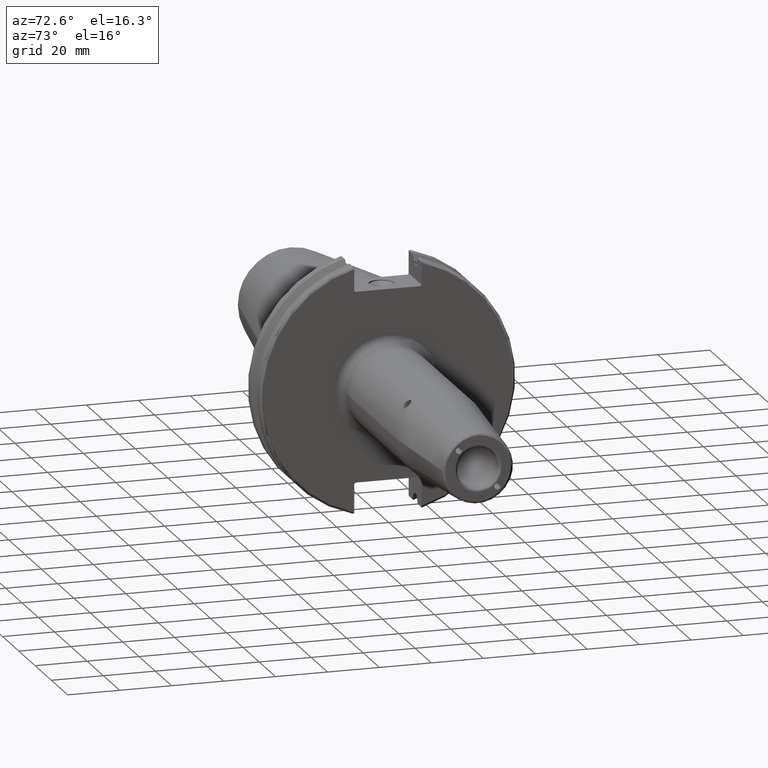
[diagram: clean part render]
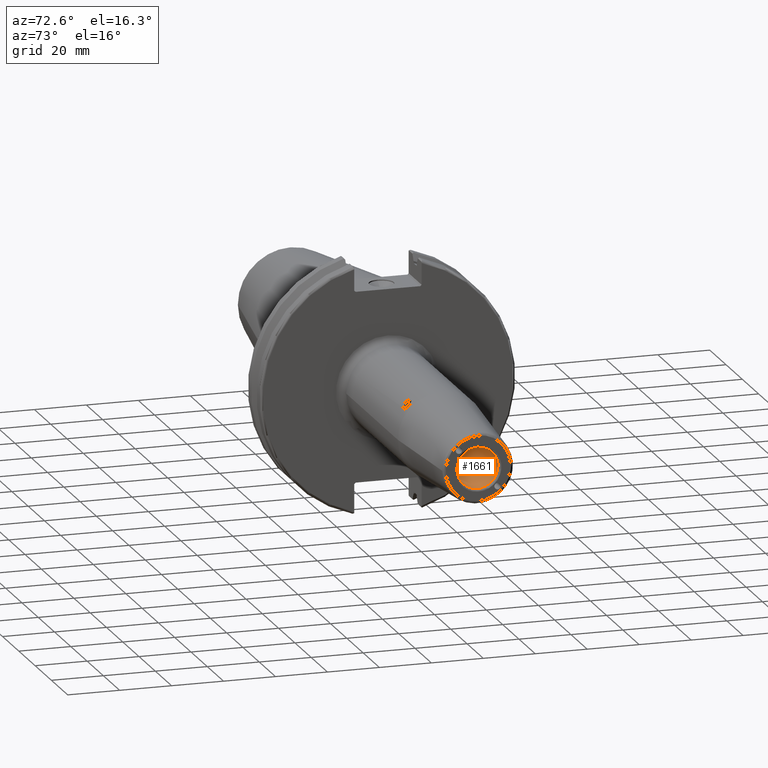
[diagram: same view with one face highlighted and labeled with its STEP entity id]
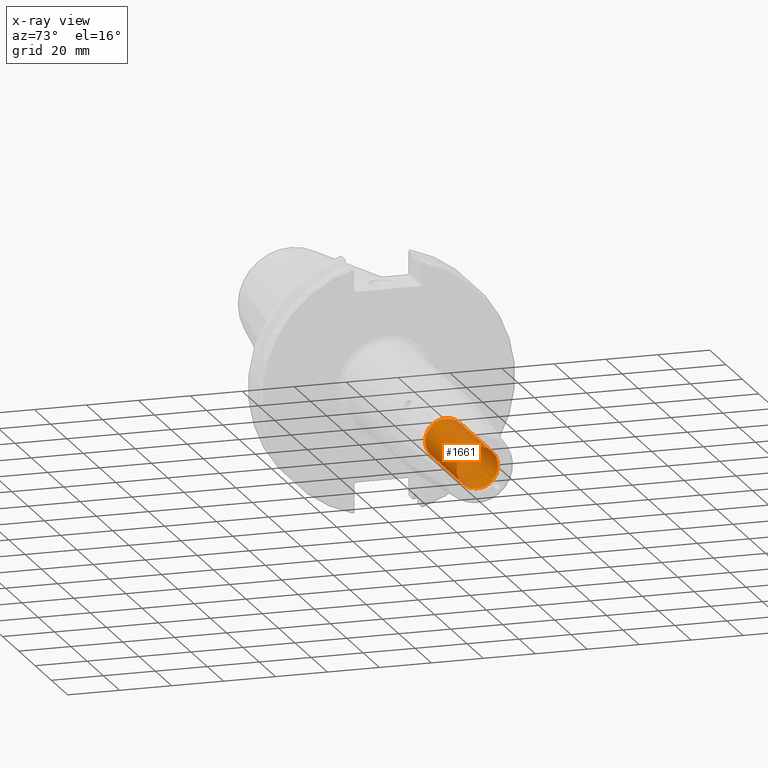
[diagram: x-ray of the same camera — body ghosted, the highlighted face saturated]
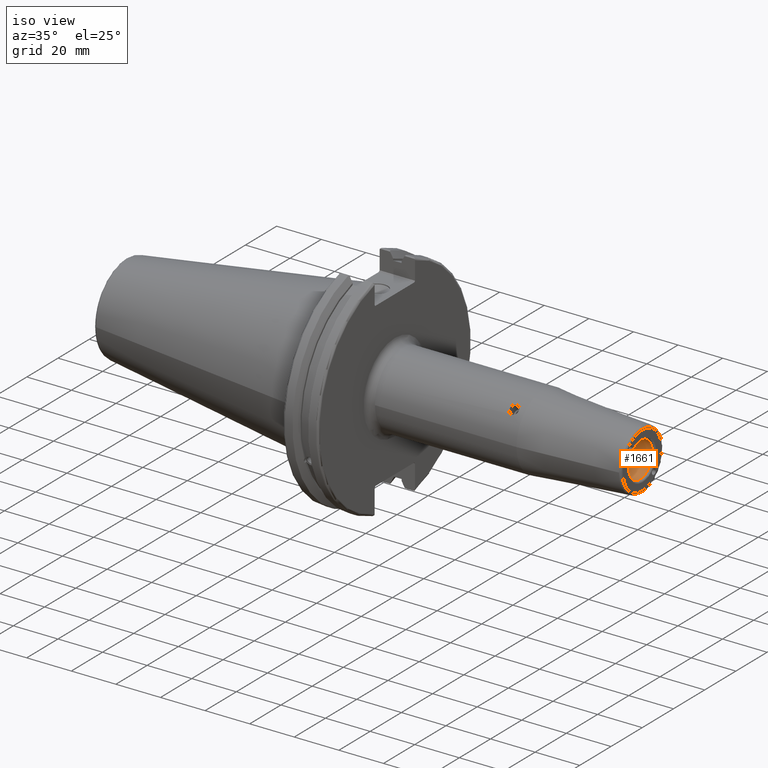
[diagram: same view with one face highlighted and labeled with its STEP entity id]
A machine part, auxiliary view. The second image highlights one B-rep face of the part: STEP entity #1661.
The next image is the same camera in x-ray: the body ghosted, the highlighted face saturated — about 0% of this face is hidden behind the body in this view.
A second angle (iso view) of the same face is appended — the face is thin or edge-on in the first view.
In plain terms, the highlighted cylindrical surface (bore or boss wall) has radius 7.9375 mm, axis along (1, 0, 0).
Its self-contained STEP definition (entity closure, byte-faithful):
#121=CIRCLE('',#1783,7.93749999999999);
#122=CIRCLE('',#1784,7.93749999999999);
#126=CIRCLE('',#1790,7.93749999999999);
#208=FACE_OUTER_BOUND('',#306,.T.);
#306=EDGE_LOOP('',(#1164,#1165,#1166,#1167,#1168));
#476=LINE('',#2690,#577);
#577=VECTOR('',#1999,7.93749999999999);
#696=VERTEX_POINT('',#2678);
#697=VERTEX_POINT('',#2679);
#700=VERTEX_POINT('',#2689);
#877=EDGE_CURVE('',#696,#697,#121,.T.);
#878=EDGE_CURVE('',#697,#696,#122,.T.);
#882=EDGE_CURVE('',#697,#700,#476,.T.);
#883=EDGE_CURVE('',#700,#700,#126,.T.);
#1164=ORIENTED_EDGE('',*,*,#877,.F.);
#1165=ORIENTED_EDGE('',*,*,#878,.F.);
#1166=ORIENTED_EDGE('',*,*,#882,.T.);
#1167=ORIENTED_EDGE('',*,*,#883,.F.);
#1168=ORIENTED_EDGE('',*,*,#882,.F.);
#1624=CYLINDRICAL_SURFACE('',#1789,7.93749999999999);
#1661=ADVANCED_FACE('',(#208),#1624,.F.);
#1783=AXIS2_PLACEMENT_3D('',#2680,#1985,#1986);
#1784=AXIS2_PLACEMENT_3D('',#2681,#1987,#1988);
#1789=AXIS2_PLACEMENT_3D('',#2688,#1997,#1998);
#1790=AXIS2_PLACEMENT_3D('',#2691,#2000,#2001);
#1985=DIRECTION('center_axis',(-1.,0.,0.));
#1986=DIRECTION('ref_axis',(0.,-1.,1.83697019872103E-16));
#1987=DIRECTION('center_axis',(-1.,0.,0.));
#1988=DIRECTION('ref_axis',(0.,-1.,1.83697019872103E-16));
#1997=DIRECTION('center_axis',(1.,0.,0.));
#1998=DIRECTION('ref_axis',(0.,1.,0.));
#1999=DIRECTION('',(-1.,0.,0.));
#2000=DIRECTION('center_axis',(1.,0.,0.));
#2001=DIRECTION('ref_axis',(0.,0.,-1.));
#2678=CARTESIAN_POINT('',(129.,-9.72063396823211E-16,7.93749999999999));
#2679=CARTESIAN_POINT('',(129.,-7.93749999999999,-9.72063396823211E-16));
#2680=CARTESIAN_POINT('Origin',(129.,0.,0.));
#2681=CARTESIAN_POINT('Origin',(129.,0.,0.));
#2688=CARTESIAN_POINT('Origin',(110.,0.,0.));
#2689=CARTESIAN_POINT('',(90.,-7.93749999999999,-9.72063396823211E-16));
#2690=CARTESIAN_POINT('',(110.,-7.93749999999999,-9.72063396823211E-16));
#2691=CARTESIAN_POINT('Origin',(90.,0.,0.));